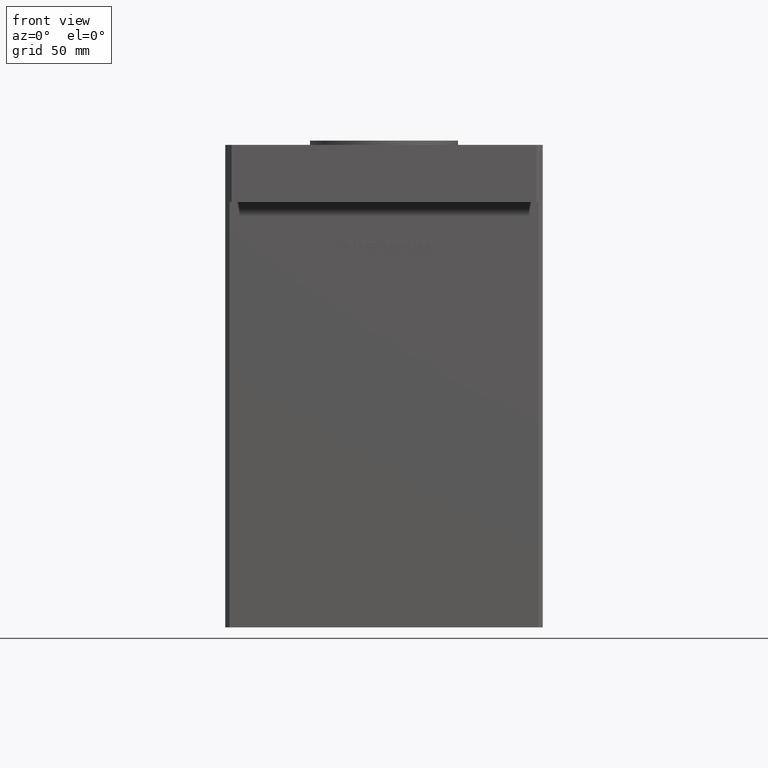
[diagram: clean part render]
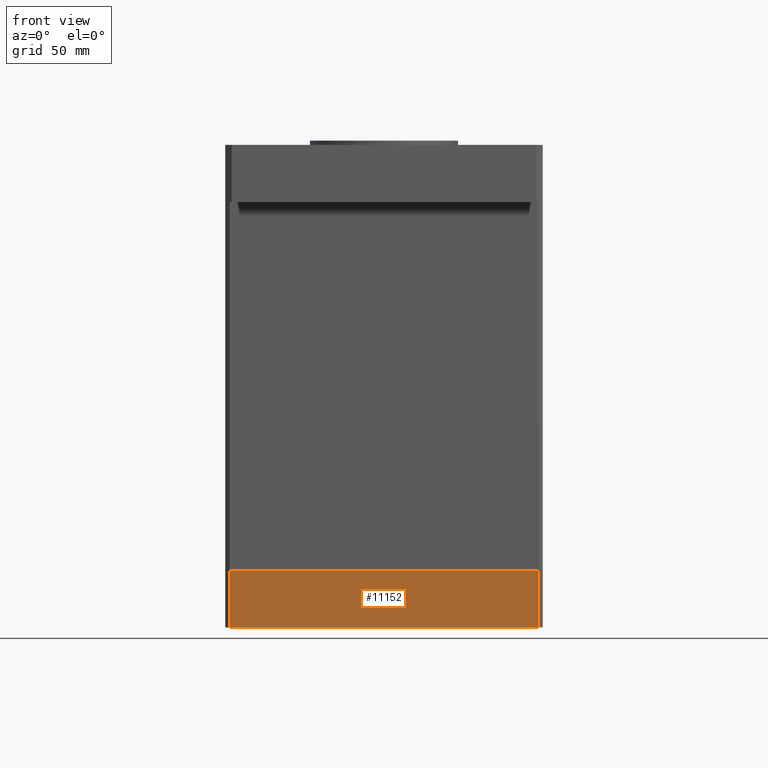
[diagram: same view with one face highlighted and labeled with its STEP entity id]
A machine part, front view. The second image highlights one B-rep face of the part: STEP entity #11152.
In plain terms, the highlighted planar face has unit normal (-0, -1, -0).
Its self-contained STEP definition (entity closure, byte-faithful):
#1480 = DIRECTION ( 'NONE',  ( 1.000000000000000000, 9.505334114941407284E-17, 0.000000000000000000 ) ) ;
#2021 = VERTEX_POINT ( 'NONE', #27253 ) ;
#2638 = VECTOR ( 'NONE', #1480, 1000.000000000000000 ) ;
#4276 = PLANE ( 'NONE',  #31890 ) ;
#5134 = EDGE_CURVE ( 'NONE', #35407, #28781, #13062, .T. ) ;
#6127 = EDGE_CURVE ( 'NONE', #40419, #28781, #37824, .T. ) ;
#11152 = ADVANCED_FACE ( 'NONE', ( #23684 ), #4276, .T. ) ;
#13062 = LINE ( 'NONE', #13336, #51583 ) ;
#13336 = CARTESIAN_POINT ( 'NONE',  ( 73.00000000000001421, -62.50000000000001421, -27.00000000000000000 ) ) ;
#16525 = CARTESIAN_POINT ( 'NONE',  ( -73.00000000000001421, -62.50000000000002842, -27.00000000000000000 ) ) ;
#17381 = CARTESIAN_POINT ( 'NONE',  ( -73.00000000000001421, -62.50000000000002842, 0.000000000000000000 ) ) ;
#18415 = EDGE_CURVE ( 'NONE', #2021, #40419, #19472, .T. ) ;
#19472 = LINE ( 'NONE', #52035, #42409 ) ;
#23684 = FACE_OUTER_BOUND ( 'NONE', #43431, .T. ) ;
#23932 = CARTESIAN_POINT ( 'NONE',  ( -73.00000000000001421, -62.50000000000002842, -27.00000000000000000 ) ) ;
#27253 = CARTESIAN_POINT ( 'NONE',  ( -73.00000000000001421, -62.50000000000002842, -27.00000000000000000 ) ) ;
#27364 = ORIENTED_EDGE ( 'NONE', *, *, #30560, .T. ) ;
#28781 = VERTEX_POINT ( 'NONE', #35814 ) ;
#30560 = EDGE_CURVE ( 'NONE', #2021, #35407, #40730, .T. ) ;
#30771 = ORIENTED_EDGE ( 'NONE', *, *, #5134, .T. ) ;
#31750 = DIRECTION ( 'NONE',  ( 1.000000000000000000, 9.505334114941407284E-17, 0.000000000000000000 ) ) ;
#31890 = AXIS2_PLACEMENT_3D ( 'NONE', #23932, #36317, #31750 ) ;
#32097 = DIRECTION ( 'NONE',  ( 0.000000000000000000, 0.000000000000000000, 1.000000000000000000 ) ) ;
#33214 = ORIENTED_EDGE ( 'NONE', *, *, #18415, .F. ) ;
#35081 = CARTESIAN_POINT ( 'NONE',  ( -73.00000000000001421, -62.50000000000002842, 0.000000000000000000 ) ) ;
#35407 = VERTEX_POINT ( 'NONE', #38743 ) ;
#35814 = CARTESIAN_POINT ( 'NONE',  ( 73.00000000000001421, -62.50000000000001421, 0.000000000000000000 ) ) ;
#36317 = DIRECTION ( 'NONE',  ( 9.505334114941407284E-17, -1.000000000000000000, 0.000000000000000000 ) ) ;
#37824 = LINE ( 'NONE', #17381, #2638 ) ;
#38359 = DIRECTION ( 'NONE',  ( 0.000000000000000000, 0.000000000000000000, 1.000000000000000000 ) ) ;
#38743 = CARTESIAN_POINT ( 'NONE',  ( 73.00000000000001421, -62.50000000000001421, -27.00000000000000000 ) ) ;
#40419 = VERTEX_POINT ( 'NONE', #35081 ) ;
#40730 = LINE ( 'NONE', #16525, #45650 ) ;
#42409 = VECTOR ( 'NONE', #32097, 1000.000000000000000 ) ;
#43431 = EDGE_LOOP ( 'NONE', ( #48729, #33214, #27364, #30771 ) ) ;
#44764 = DIRECTION ( 'NONE',  ( 1.000000000000000000, 9.505334114941407284E-17, 0.000000000000000000 ) ) ;
#45650 = VECTOR ( 'NONE', #44764, 1000.000000000000000 ) ;
#48729 = ORIENTED_EDGE ( 'NONE', *, *, #6127, .F. ) ;
#51583 = VECTOR ( 'NONE', #38359, 1000.000000000000000 ) ;
#52035 = CARTESIAN_POINT ( 'NONE',  ( -73.00000000000001421, -62.50000000000002842, -27.00000000000000000 ) ) ;